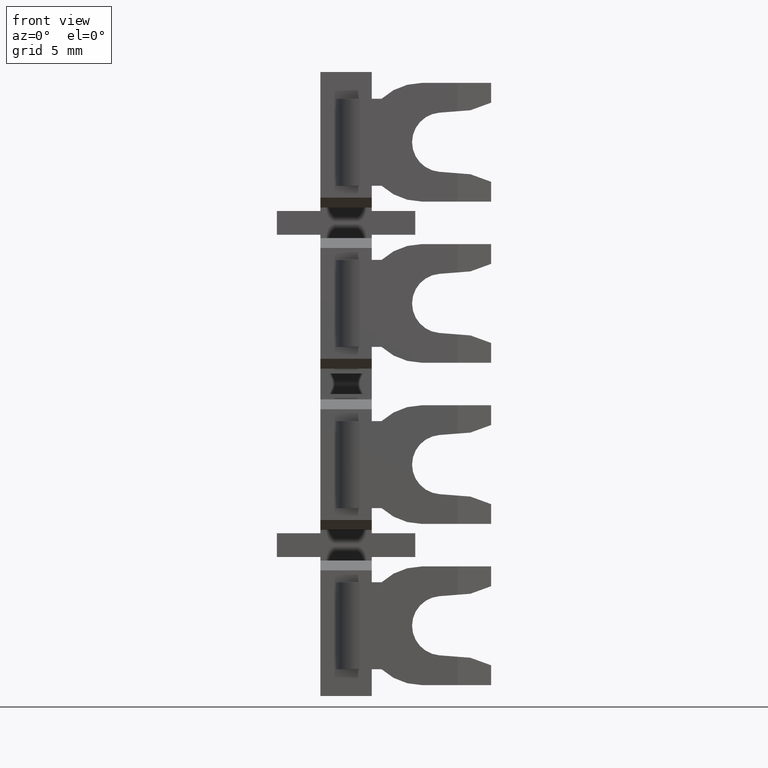
[diagram: clean part render]
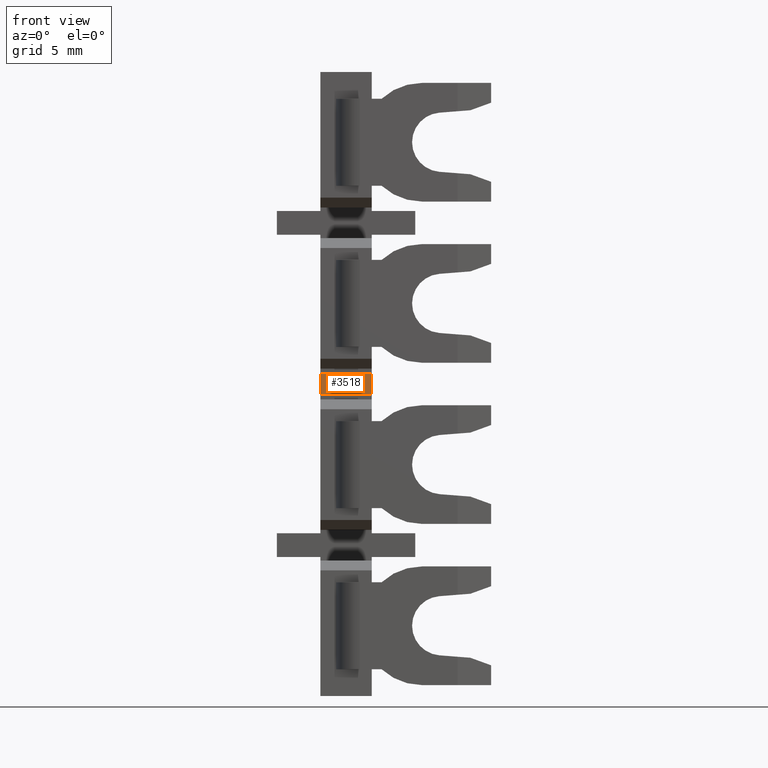
[diagram: same view with one face highlighted and labeled with its STEP entity id]
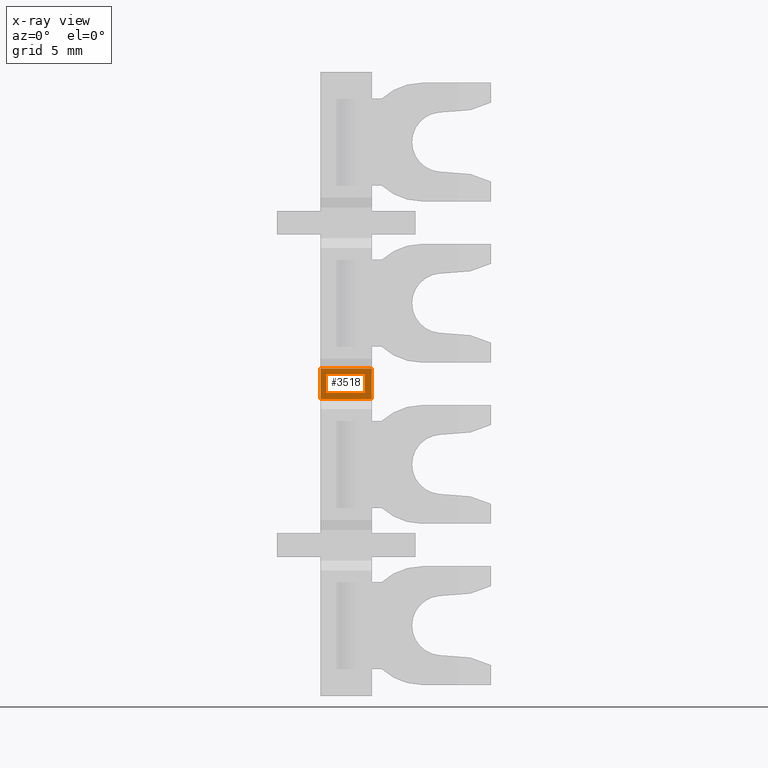
[diagram: x-ray of the same camera — body ghosted, the highlighted face saturated]
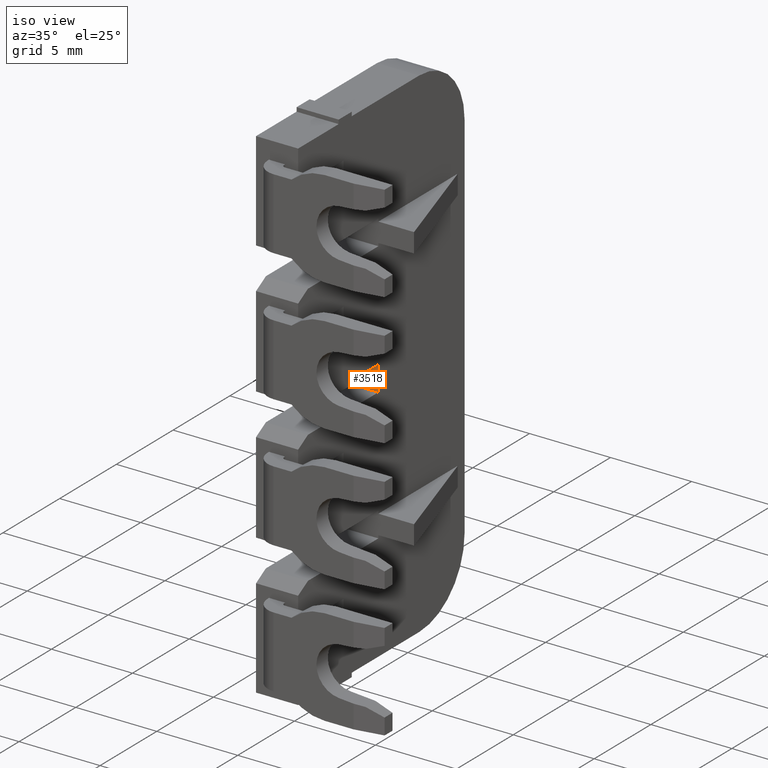
[diagram: same view with one face highlighted and labeled with its STEP entity id]
A machine part, front view. The second image highlights one B-rep face of the part: STEP entity #3518.
The next image is the same camera in x-ray: the body ghosted, the highlighted face saturated — about 0% of this face is hidden behind the body in this view.
A second angle (iso view) of the same face is appended — the face is thin or edge-on in the first view.
In plain terms, the highlighted planar face has unit normal (-0, 1, 0).
Its self-contained STEP definition (entity closure, byte-faithful):
#178 = VECTOR ( 'NONE', #1751, 1000.000000000000000 ) ;
#273 = VECTOR ( 'NONE', #1045, 1000.000000000000000 ) ;
#282 = VECTOR ( 'NONE', #973, 1000.000000000000000 ) ;
#306 = VECTOR ( 'NONE', #1186, 1000.000000000000000 ) ;
#438 = AXIS2_PLACEMENT_3D ( 'NONE', #1495, #1496, #1470 ) ;
#947 = CARTESIAN_POINT ( 'NONE',  ( 1510.045209356660100, 1087.334526901996000, -7.400000000000000400 ) ) ;
#956 = LINE ( 'NONE', #947, #282 ) ;
#973 = DIRECTION ( 'NONE',  ( 1.000000000000000000, 3.538835890992685300E-015, -3.127885073672970000E-015 ) ) ;
#1045 = DIRECTION ( 'NONE',  ( 3.250333119651810100E-015, -2.521813793386570200E-016, 1.000000000000000000 ) ) ;
#1075 = CARTESIAN_POINT ( 'NONE',  ( 1512.445209356660100, 1087.334526901996000, -0.8000000000000000400 ) ) ;
#1081 = LINE ( 'NONE', #1075, #273 ) ;
#1186 = DIRECTION ( 'NONE',  ( 1.000000000000000000, 3.538835890992685300E-015, -3.372781165630650300E-015 ) ) ;
#1192 = CARTESIAN_POINT ( 'NONE',  ( 1510.045209356660100, 1087.334526901996000, -8.949999999999999300 ) ) ;
#1210 = LINE ( 'NONE', #1192, #306 ) ;
#1469 = FACE_OUTER_BOUND ( 'NONE', #4820, .T. ) ;
#1470 = DIRECTION ( 'NONE',  ( -3.245021148230585200E-015, 0.0000000000000000000, -1.000000000000000000 ) ) ;
#1489 = PLANE ( 'NONE',  #438 ) ;
#1495 = CARTESIAN_POINT ( 'NONE',  ( 1510.045209356660100, 1087.334526901996000, -8.800000000000000700 ) ) ;
#1496 = DIRECTION ( 'NONE',  ( -3.663735981263015800E-015, 1.000000000000000000, 1.188890074073182200E-029 ) ) ;
#1751 = DIRECTION ( 'NONE',  ( 3.190924781433425100E-015, -2.521813793386575100E-016, 1.000000000000000000 ) ) ;
#1772 = CARTESIAN_POINT ( 'NONE',  ( 1515.045209356660100, 1087.334526901996000, -8.800000000000000700 ) ) ;
#1791 = LINE ( 'NONE', #1772, #178 ) ;
#2018 = EDGE_CURVE ( 'NONE', #4575, #4419, #1791, .T. ) ;
#2097 = EDGE_CURVE ( 'NONE', #4541, #4419, #956, .T. ) ;
#2130 = EDGE_CURVE ( 'NONE', #4489, #4541, #1081, .T. ) ;
#2165 = EDGE_CURVE ( 'NONE', #4489, #4575, #1210, .T. ) ;
#2903 = ORIENTED_EDGE ( 'NONE', *, *, #2097, .F. ) ;
#2921 = ORIENTED_EDGE ( 'NONE', *, *, #2130, .F. ) ;
#2922 = ORIENTED_EDGE ( 'NONE', *, *, #2165, .T. ) ;
#2975 = ORIENTED_EDGE ( 'NONE', *, *, #2018, .T. ) ;
#3518 = ADVANCED_FACE ( 'NONE', ( #1469 ), #1489, .F. ) ;
#3974 = CARTESIAN_POINT ( 'NONE',  ( 1515.045209356660100, 1087.334526901996000, -7.400000000000000400 ) ) ;
#4095 = CARTESIAN_POINT ( 'NONE',  ( 1512.445209356660100, 1087.334526901996000, -8.949999999999999300 ) ) ;
#4137 = CARTESIAN_POINT ( 'NONE',  ( 1512.445209356660100, 1087.334526901996000, -7.400000000000000400 ) ) ;
#4159 = CARTESIAN_POINT ( 'NONE',  ( 1515.045209356660100, 1087.334526901996000, -8.949999999999999300 ) ) ;
#4419 = VERTEX_POINT ( 'NONE', #3974 ) ;
#4489 = VERTEX_POINT ( 'NONE', #4095 ) ;
#4541 = VERTEX_POINT ( 'NONE', #4137 ) ;
#4575 = VERTEX_POINT ( 'NONE', #4159 ) ;
#4820 = EDGE_LOOP ( 'NONE', ( #2903, #2921, #2922, #2975 ) ) ;